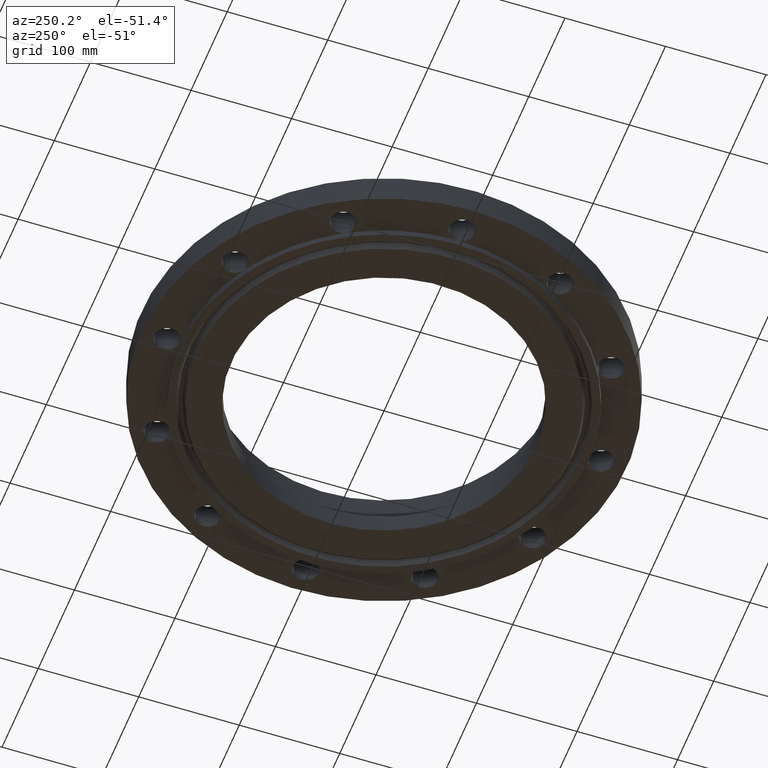
[diagram: clean part render]
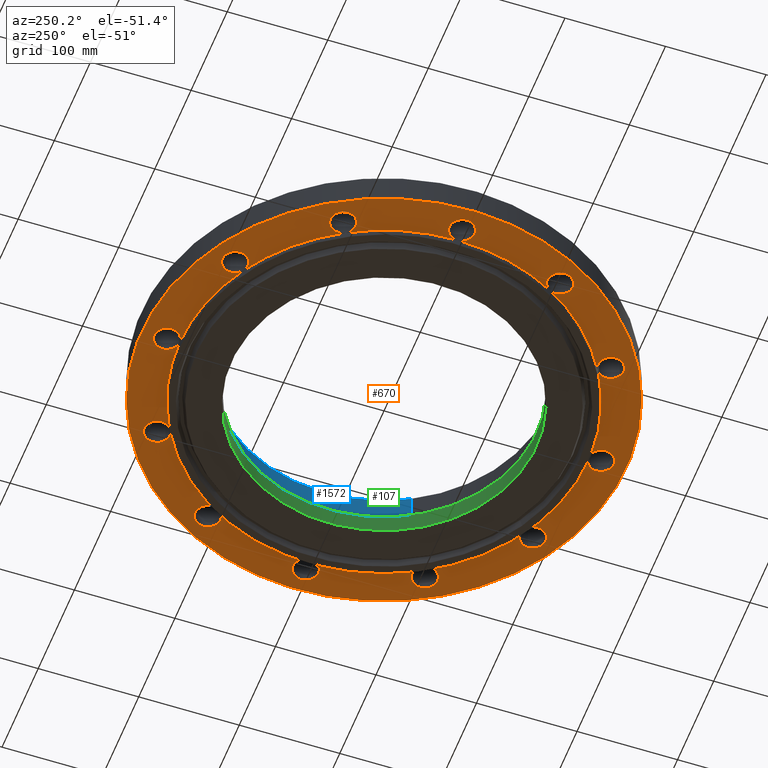
[diagram: same view with three faces highlighted in distinct colors, each labeled with its STEP entity id]
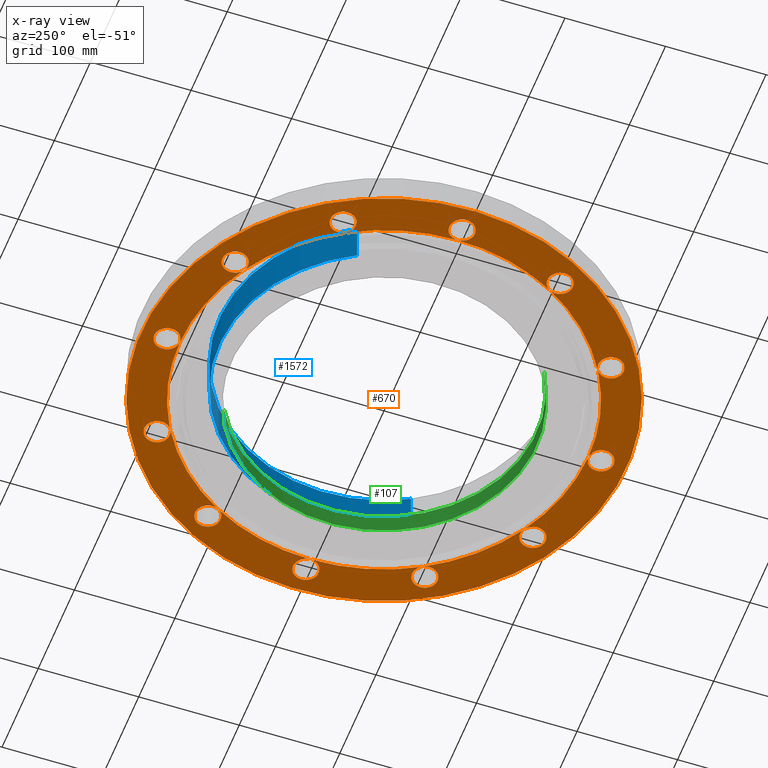
[diagram: x-ray of the same camera — body ghosted, the three highlighted faces saturated]
A machine part, auxiliary view with three faces highlighted in distinct colors.
The next image is the same camera in x-ray (body ghosted, the three faces saturated) — at least one of them is partly hidden behind the body in this view.
Their STEP definitions:

[orange] entity #670 — the highlighted planar face has unit normal (0, 0, -1).
#242=AXIS2_PLACEMENT_3D('Circle Axis2P3D',#240,#241,$) ;
#249=AXIS2_PLACEMENT_3D('Circle Axis2P3D',#247,#248,$) ;
#256=AXIS2_PLACEMENT_3D('Circle Axis2P3D',#254,#255,$) ;
#263=AXIS2_PLACEMENT_3D('Circle Axis2P3D',#261,#262,$) ;
#270=AXIS2_PLACEMENT_3D('Circle Axis2P3D',#268,#269,$) ;
#277=AXIS2_PLACEMENT_3D('Circle Axis2P3D',#275,#276,$) ;
#284=AXIS2_PLACEMENT_3D('Circle Axis2P3D',#282,#283,$) ;
#309=AXIS2_PLACEMENT_3D('Circle Axis2P3D',#307,#308,$) ;
#316=AXIS2_PLACEMENT_3D('Circle Axis2P3D',#314,#315,$) ;
#323=AXIS2_PLACEMENT_3D('Circle Axis2P3D',#321,#322,$) ;
#330=AXIS2_PLACEMENT_3D('Circle Axis2P3D',#328,#329,$) ;
#337=AXIS2_PLACEMENT_3D('Circle Axis2P3D',#335,#336,$) ;
#344=AXIS2_PLACEMENT_3D('Circle Axis2P3D',#342,#343,$) ;
#351=AXIS2_PLACEMENT_3D('Circle Axis2P3D',#349,#350,$) ;
#370=AXIS2_PLACEMENT_3D('Plane Axis2P3D',#367,#368,#369) ;
#374=AXIS2_PLACEMENT_3D('Circle Axis2P3D',#372,#373,$) ;
#383=AXIS2_PLACEMENT_3D('Circle Axis2P3D',#381,#382,$) ;
#392=AXIS2_PLACEMENT_3D('Circle Axis2P3D',#390,#391,$) ;
#399=AXIS2_PLACEMENT_3D('Circle Axis2P3D',#397,#398,$) ;
#406=AXIS2_PLACEMENT_3D('Circle Axis2P3D',#404,#405,$) ;
#411=AXIS2_PLACEMENT_3D('Circle Axis2P3D',#409,#410,$) ;
#418=AXIS2_PLACEMENT_3D('Circle Axis2P3D',#416,#417,$) ;
#425=AXIS2_PLACEMENT_3D('Circle Axis2P3D',#423,#424,$) ;
#430=AXIS2_PLACEMENT_3D('Circle Axis2P3D',#428,#429,$) ;
#437=AXIS2_PLACEMENT_3D('Circle Axis2P3D',#435,#436,$) ;
#444=AXIS2_PLACEMENT_3D('Circle Axis2P3D',#442,#443,$) ;
#449=AXIS2_PLACEMENT_3D('Circle Axis2P3D',#447,#448,$) ;
#456=AXIS2_PLACEMENT_3D('Circle Axis2P3D',#454,#455,$) ;
#463=AXIS2_PLACEMENT_3D('Circle Axis2P3D',#461,#462,$) ;
#468=AXIS2_PLACEMENT_3D('Circle Axis2P3D',#466,#467,$) ;
#475=AXIS2_PLACEMENT_3D('Circle Axis2P3D',#473,#474,$) ;
#482=AXIS2_PLACEMENT_3D('Circle Axis2P3D',#480,#481,$) ;
#487=AXIS2_PLACEMENT_3D('Circle Axis2P3D',#485,#486,$) ;
#494=AXIS2_PLACEMENT_3D('Circle Axis2P3D',#492,#493,$) ;
#501=AXIS2_PLACEMENT_3D('Circle Axis2P3D',#499,#500,$) ;
#506=AXIS2_PLACEMENT_3D('Circle Axis2P3D',#504,#505,$) ;
#513=AXIS2_PLACEMENT_3D('Circle Axis2P3D',#511,#512,$) ;
#520=AXIS2_PLACEMENT_3D('Circle Axis2P3D',#518,#519,$) ;
#525=AXIS2_PLACEMENT_3D('Circle Axis2P3D',#523,#524,$) ;
#532=AXIS2_PLACEMENT_3D('Circle Axis2P3D',#530,#531,$) ;
#539=AXIS2_PLACEMENT_3D('Circle Axis2P3D',#537,#538,$) ;
#544=AXIS2_PLACEMENT_3D('Circle Axis2P3D',#542,#543,$) ;
#551=AXIS2_PLACEMENT_3D('Circle Axis2P3D',#549,#550,$) ;
#558=AXIS2_PLACEMENT_3D('Circle Axis2P3D',#556,#557,$) ;
#563=AXIS2_PLACEMENT_3D('Circle Axis2P3D',#561,#562,$) ;
#570=AXIS2_PLACEMENT_3D('Circle Axis2P3D',#568,#569,$) ;
#577=AXIS2_PLACEMENT_3D('Circle Axis2P3D',#575,#576,$) ;
#582=AXIS2_PLACEMENT_3D('Circle Axis2P3D',#580,#581,$) ;
#589=AXIS2_PLACEMENT_3D('Circle Axis2P3D',#587,#588,$) ;
#596=AXIS2_PLACEMENT_3D('Circle Axis2P3D',#594,#595,$) ;
#601=AXIS2_PLACEMENT_3D('Circle Axis2P3D',#599,#600,$) ;
#608=AXIS2_PLACEMENT_3D('Circle Axis2P3D',#606,#607,$) ;
#615=AXIS2_PLACEMENT_3D('Circle Axis2P3D',#613,#614,$) ;
#237=CARTESIAN_POINT('Vertex',(-3.83540430885,-7.02066049515,8.39223703654E-016)) ;
#240=CARTESIAN_POINT('Axis2P3D Location',(0.,0.,9.79094320929E-016)) ;
#244=CARTESIAN_POINT('Vertex',(-4.00000000002,-6.9282032303,0.)) ;
#247=CARTESIAN_POINT('Axis2P3D Location',(0.,0.,9.79094320929E-016)) ;
#251=CARTESIAN_POINT('Vertex',(-6.9282032303,-4.00000000002,0.)) ;
#254=CARTESIAN_POINT('Axis2P3D Location',(0.,0.,9.79094320929E-016)) ;
#258=CARTESIAN_POINT('Vertex',(-8.00000000003,1.1189649382E-015,0.)) ;
#261=CARTESIAN_POINT('Axis2P3D Location',(0.,0.,9.79094320929E-016)) ;
#265=CARTESIAN_POINT('Vertex',(-6.9282032303,4.00000000002,0.)) ;
#268=CARTESIAN_POINT('Axis2P3D Location',(0.,0.,9.79094320929E-016)) ;
#272=CARTESIAN_POINT('Vertex',(-4.00000000002,6.9282032303,0.)) ;
#275=CARTESIAN_POINT('Axis2P3D Location',(0.,0.,9.79094320929E-016)) ;
#279=CARTESIAN_POINT('Vertex',(-3.42901103763E-015,8.00000000003,9.79094320929E-016)) ;
#282=CARTESIAN_POINT('Axis2P3D Location',(0.,0.,9.79094320929E-016)) ;
#286=CARTESIAN_POINT('Vertex',(3.83540430885,7.02066049515,8.39223703654E-016)) ;
#307=CARTESIAN_POINT('Axis2P3D Location',(0.,0.,9.79094320929E-016)) ;
#311=CARTESIAN_POINT('Vertex',(4.00000000002,6.9282032303,0.)) ;
#314=CARTESIAN_POINT('Axis2P3D Location',(0.,0.,9.79094320929E-016)) ;
#318=CARTESIAN_POINT('Vertex',(6.9282032303,4.00000000002,0.)) ;
#321=CARTESIAN_POINT('Axis2P3D Location',(0.,0.,9.79094320929E-016)) ;
#325=CARTESIAN_POINT('Vertex',(8.00000000003,0.,0.)) ;
#328=CARTESIAN_POINT('Axis2P3D Location',(0.,0.,9.79094320929E-016)) ;
#332=CARTESIAN_POINT('Vertex',(6.9282032303,-4.00000000002,0.)) ;
#335=CARTESIAN_POINT('Axis2P3D Location',(0.,0.,9.79094320929E-016)) ;
#339=CARTESIAN_POINT('Vertex',(4.00000000002,-6.9282032303,0.)) ;
#342=CARTESIAN_POINT('Axis2P3D Location',(0.,0.,9.79094320929E-016)) ;
#346=CARTESIAN_POINT('Vertex',(1.4467282801E-015,-8.00000000003,0.)) ;
#349=CARTESIAN_POINT('Axis2P3D Location',(0.,0.,9.79094320929E-016)) ;
#367=CARTESIAN_POINT('Axis2P3D Location',(0.,8.00000000003,0.)) ;
#372=CARTESIAN_POINT('Axis2P3D Location',(0.,0.,0.)) ;
#376=CARTESIAN_POINT('Vertex',(-4.55454261676,-8.33703433799,1.1189649382E-015)) ;
#378=CARTESIAN_POINT('Vertex',(4.55454261676,8.33703433799,1.1189649382E-015)) ;
#381=CARTESIAN_POINT('Axis2P3D Location',(0.,0.,0.)) ;
#390=CARTESIAN_POINT('Axis2P3D Location',(7.3612159322,4.25000000002,0.)) ;
#394=CARTESIAN_POINT('Vertex',(7.37301422484,3.75013921911,0.)) ;
#397=CARTESIAN_POINT('Axis2P3D Location',(7.3612159322,4.25000000002,0.)) ;
#401=CARTESIAN_POINT('Vertex',(7.34941763955,4.74986078093,0.)) ;
#404=CARTESIAN_POINT('Axis2P3D Location',(7.3612159322,4.25000000002,0.)) ;
#409=CARTESIAN_POINT('Axis2P3D Location',(4.25000000002,7.3612159322,0.)) ;
#413=CARTESIAN_POINT('Vertex',(4.51014801162,6.9342229439,0.)) ;
#416=CARTESIAN_POINT('Axis2P3D Location',(4.25000000002,7.3612159322,0.)) ;
#420=CARTESIAN_POINT('Vertex',(3.98985198841,7.7882089205,0.)) ;
#423=CARTESIAN_POINT('Axis2P3D Location',(4.25000000002,7.3612159322,0.)) ;
#428=CARTESIAN_POINT('Axis2P3D Location',(5.24514814784E-017,8.50000000003,0.)) ;
#432=CARTESIAN_POINT('Vertex',(0.438791280947,8.26028723073,0.)) ;
#435=CARTESIAN_POINT('Axis2P3D Location',(-2.62257407392E-016,8.50000000003,0.)) ;
#439=CARTESIAN_POINT('Vertex',(-0.438791280947,8.73971276934,0.)) ;
#442=CARTESIAN_POINT('Axis2P3D Location',(5.24514814784E-017,8.50000000003,0.)) ;
#447=CARTESIAN_POINT('Axis2P3D Location',(-4.25000000002,7.3612159322,0.)) ;
#451=CARTESIAN_POINT('Vertex',(-3.75013921911,7.37301422484,0.)) ;
#454=CARTESIAN_POINT('Axis2P3D Location',(-4.25000000002,7.3612159322,0.)) ;
#458=CARTESIAN_POINT('Vertex',(-4.74986078093,7.34941763955,0.)) ;
#461=CARTESIAN_POINT('Axis2P3D Location',(-4.25000000002,7.3612159322,0.)) ;
#466=CARTESIAN_POINT('Axis2P3D Location',(-7.3612159322,4.25000000002,0.)) ;
#470=CARTESIAN_POINT('Vertex',(-6.9342229439,4.51014801162,0.)) ;
#473=CARTESIAN_POINT('Axis2P3D Location',(-7.3612159322,4.25000000002,0.)) ;
#477=CARTESIAN_POINT('Vertex',(-7.7882089205,3.98985198841,0.)) ;
#480=CARTESIAN_POINT('Axis2P3D Location',(-7.3612159322,4.25000000002,0.)) ;
#485=CARTESIAN_POINT('Axis2P3D Location',(-8.50000000003,0.,0.)) ;
#489=CARTESIAN_POINT('Vertex',(-8.26028723073,0.438791280947,0.)) ;
#492=CARTESIAN_POINT('Axis2P3D Location',(-8.50000000003,-1.1189649382E-015,0.)) ;
#496=CARTESIAN_POINT('Vertex',(-8.73971276934,-0.438791280947,0.)) ;
#499=CARTESIAN_POINT('Axis2P3D Location',(-8.50000000003,0.,0.)) ;
#504=CARTESIAN_POINT('Axis2P3D Location',(-7.3612159322,-4.25000000002,0.)) ;
#508=CARTESIAN_POINT('Vertex',(-7.37301422484,-3.75013921911,0.)) ;
#511=CARTESIAN_POINT('Axis2P3D Location',(-7.3612159322,-4.25000000002,0.)) ;
#515=CARTESIAN_POINT('Vertex',(-7.34941763955,-4.74986078093,0.)) ;
#518=CARTESIAN_POINT('Axis2P3D Location',(-7.3612159322,-4.25000000002,0.)) ;
#523=CARTESIAN_POINT('Axis2P3D Location',(-4.25000000002,-7.3612159322,0.)) ;
#527=CARTESIAN_POINT('Vertex',(-4.51014801162,-6.9342229439,0.)) ;
#530=CARTESIAN_POINT('Axis2P3D Location',(-4.25000000002,-7.3612159322,0.)) ;
#534=CARTESIAN_POINT('Vertex',(-3.98985198841,-7.7882089205,0.)) ;
#537=CARTESIAN_POINT('Axis2P3D Location',(-4.25000000002,-7.3612159322,0.)) ;
#542=CARTESIAN_POINT('Axis2P3D Location',(1.53857679003E-015,-8.50000000003,0.)) ;
#546=CARTESIAN_POINT('Vertex',(-0.438791280947,-8.26028723073,0.)) ;
#549=CARTESIAN_POINT('Axis2P3D Location',(6.81869259219E-016,-8.50000000003,0.)) ;
#553=CARTESIAN_POINT('Vertex',(0.438791280947,-8.73971276934,0.)) ;
#556=CARTESIAN_POINT('Axis2P3D Location',(1.53857679003E-015,-8.50000000003,0.)) ;
#561=CARTESIAN_POINT('Axis2P3D Location',(4.25000000002,-7.3612159322,0.)) ;
#565=CARTESIAN_POINT('Vertex',(3.75013921911,-7.37301422484,0.)) ;
#568=CARTESIAN_POINT('Axis2P3D Location',(4.25000000002,-7.3612159322,0.)) ;
#572=CARTESIAN_POINT('Vertex',(4.74986078093,-7.34941763955,0.)) ;
#575=CARTESIAN_POINT('Axis2P3D Location',(4.25000000002,-7.3612159322,0.)) ;
#580=CARTESIAN_POINT('Axis2P3D Location',(7.3612159322,-4.25000000002,0.)) ;
#584=CARTESIAN_POINT('Vertex',(6.9342229439,-4.51014801162,-1.1189649382E-015)) ;
#587=CARTESIAN_POINT('Axis2P3D Location',(7.3612159322,-4.25000000002,0.)) ;
#591=CARTESIAN_POINT('Vertex',(7.7882089205,-3.98985198841,0.)) ;
#594=CARTESIAN_POINT('Axis2P3D Location',(7.3612159322,-4.25000000002,0.)) ;
#599=CARTESIAN_POINT('Axis2P3D Location',(8.50000000003,0.,0.)) ;
#603=CARTESIAN_POINT('Vertex',(8.26028723073,-0.438791280947,0.)) ;
#606=CARTESIAN_POINT('Axis2P3D Location',(8.50000000003,0.,0.)) ;
#610=CARTESIAN_POINT('Vertex',(8.73971276934,0.438791280947,0.)) ;
#613=CARTESIAN_POINT('Axis2P3D Location',(8.50000000003,0.,0.)) ;
#241=DIRECTION('Axis2P3D Direction',(0.,0.,-0.0393700787402)) ;
#248=DIRECTION('Axis2P3D Direction',(0.,0.,-0.0393700787402)) ;
#255=DIRECTION('Axis2P3D Direction',(0.,0.,-0.0393700787402)) ;
#262=DIRECTION('Axis2P3D Direction',(0.,0.,-0.0393700787402)) ;
#269=DIRECTION('Axis2P3D Direction',(0.,0.,-0.0393700787402)) ;
#276=DIRECTION('Axis2P3D Direction',(0.,0.,-0.0393700787402)) ;
#283=DIRECTION('Axis2P3D Direction',(0.,0.,-0.0393700787402)) ;
#308=DIRECTION('Axis2P3D Direction',(0.,0.,-0.0393700787402)) ;
#315=DIRECTION('Axis2P3D Direction',(0.,0.,-0.0393700787402)) ;
#322=DIRECTION('Axis2P3D Direction',(0.,0.,-0.0393700787402)) ;
#329=DIRECTION('Axis2P3D Direction',(0.,0.,-0.0393700787402)) ;
#336=DIRECTION('Axis2P3D Direction',(0.,0.,-0.0393700787402)) ;
#343=DIRECTION('Axis2P3D Direction',(0.,0.,-0.0393700787402)) ;
#350=DIRECTION('Axis2P3D Direction',(0.,0.,-0.0393700787402)) ;
#368=DIRECTION('Axis2P3D Direction',(0.,0.,-0.0393700787402)) ;
#369=DIRECTION('Axis2P3D XDirection',(0.0393700787402,0.,0.)) ;
#373=DIRECTION('Axis2P3D Direction',(0.,0.,-0.0393700787402)) ;
#382=DIRECTION('Axis2P3D Direction',(0.,0.,-0.0393700787402)) ;
#391=DIRECTION('Axis2P3D Direction',(0.,0.,-0.0393700787402)) ;
#398=DIRECTION('Axis2P3D Direction',(0.,0.,-0.0393700787402)) ;
#405=DIRECTION('Axis2P3D Direction',(0.,0.,-0.0393700787402)) ;
#410=DIRECTION('Axis2P3D Direction',(0.,0.,-0.0393700787402)) ;
#417=DIRECTION('Axis2P3D Direction',(0.,0.,-0.0393700787402)) ;
#424=DIRECTION('Axis2P3D Direction',(0.,0.,-0.0393700787402)) ;
#429=DIRECTION('Axis2P3D Direction',(0.,0.,-0.0393700787402)) ;
#436=DIRECTION('Axis2P3D Direction',(0.,0.,-0.0393700787402)) ;
#443=DIRECTION('Axis2P3D Direction',(0.,0.,-0.0393700787402)) ;
#448=DIRECTION('Axis2P3D Direction',(0.,0.,-0.0393700787402)) ;
#455=DIRECTION('Axis2P3D Direction',(0.,0.,-0.0393700787402)) ;
#462=DIRECTION('Axis2P3D Direction',(0.,0.,-0.0393700787402)) ;
#467=DIRECTION('Axis2P3D Direction',(0.,0.,-0.0393700787402)) ;
#474=DIRECTION('Axis2P3D Direction',(0.,0.,-0.0393700787402)) ;
#481=DIRECTION('Axis2P3D Direction',(0.,0.,-0.0393700787402)) ;
#486=DIRECTION('Axis2P3D Direction',(0.,0.,-0.0393700787402)) ;
#493=DIRECTION('Axis2P3D Direction',(0.,0.,-0.0393700787402)) ;
#500=DIRECTION('Axis2P3D Direction',(0.,0.,-0.0393700787402)) ;
#505=DIRECTION('Axis2P3D Direction',(0.,0.,-0.0393700787402)) ;
#512=DIRECTION('Axis2P3D Direction',(0.,0.,-0.0393700787402)) ;
#519=DIRECTION('Axis2P3D Direction',(0.,0.,-0.0393700787402)) ;
#524=DIRECTION('Axis2P3D Direction',(0.,0.,-0.0393700787402)) ;
#531=DIRECTION('Axis2P3D Direction',(0.,0.,-0.0393700787402)) ;
#538=DIRECTION('Axis2P3D Direction',(0.,0.,-0.0393700787402)) ;
#543=DIRECTION('Axis2P3D Direction',(0.,0.,-0.0393700787402)) ;
#550=DIRECTION('Axis2P3D Direction',(0.,0.,-0.0393700787402)) ;
#557=DIRECTION('Axis2P3D Direction',(0.,0.,-0.0393700787402)) ;
#562=DIRECTION('Axis2P3D Direction',(0.,0.,-0.0393700787402)) ;
#569=DIRECTION('Axis2P3D Direction',(0.,0.,-0.0393700787402)) ;
#576=DIRECTION('Axis2P3D Direction',(0.,0.,-0.0393700787402)) ;
#581=DIRECTION('Axis2P3D Direction',(0.,0.,-0.0393700787402)) ;
#588=DIRECTION('Axis2P3D Direction',(0.,0.,-0.0393700787402)) ;
#595=DIRECTION('Axis2P3D Direction',(0.,0.,-0.0393700787402)) ;
#600=DIRECTION('Axis2P3D Direction',(0.,0.,-0.0393700787402)) ;
#607=DIRECTION('Axis2P3D Direction',(0.,0.,-0.0393700787402)) ;
#614=DIRECTION('Axis2P3D Direction',(0.,0.,-0.0393700787402)) ;
#387=ORIENTED_EDGE('',*,*,#380,.T.) ;
#388=ORIENTED_EDGE('',*,*,#385,.T.) ;
#619=ORIENTED_EDGE('',*,*,#396,.F.) ;
#620=ORIENTED_EDGE('',*,*,#403,.F.) ;
#621=ORIENTED_EDGE('',*,*,#408,.F.) ;
#622=ORIENTED_EDGE('',*,*,#320,.F.) ;
#623=ORIENTED_EDGE('',*,*,#415,.F.) ;
#624=ORIENTED_EDGE('',*,*,#422,.F.) ;
#625=ORIENTED_EDGE('',*,*,#427,.F.) ;
#626=ORIENTED_EDGE('',*,*,#313,.F.) ;
#627=ORIENTED_EDGE('',*,*,#288,.F.) ;
#628=ORIENTED_EDGE('',*,*,#434,.F.) ;
#629=ORIENTED_EDGE('',*,*,#441,.F.) ;
#630=ORIENTED_EDGE('',*,*,#446,.F.) ;
#631=ORIENTED_EDGE('',*,*,#281,.F.) ;
#632=ORIENTED_EDGE('',*,*,#453,.F.) ;
#633=ORIENTED_EDGE('',*,*,#460,.F.) ;
#634=ORIENTED_EDGE('',*,*,#465,.F.) ;
#635=ORIENTED_EDGE('',*,*,#274,.F.) ;
#636=ORIENTED_EDGE('',*,*,#472,.F.) ;
#637=ORIENTED_EDGE('',*,*,#479,.F.) ;
#638=ORIENTED_EDGE('',*,*,#484,.F.) ;
#639=ORIENTED_EDGE('',*,*,#267,.F.) ;
#640=ORIENTED_EDGE('',*,*,#491,.F.) ;
#641=ORIENTED_EDGE('',*,*,#498,.F.) ;
#642=ORIENTED_EDGE('',*,*,#503,.F.) ;
#643=ORIENTED_EDGE('',*,*,#260,.F.) ;
#644=ORIENTED_EDGE('',*,*,#510,.F.) ;
#645=ORIENTED_EDGE('',*,*,#517,.F.) ;
#646=ORIENTED_EDGE('',*,*,#522,.F.) ;
#647=ORIENTED_EDGE('',*,*,#253,.F.) ;
#648=ORIENTED_EDGE('',*,*,#529,.F.) ;
#649=ORIENTED_EDGE('',*,*,#536,.F.) ;
#650=ORIENTED_EDGE('',*,*,#541,.F.) ;
#651=ORIENTED_EDGE('',*,*,#246,.F.) ;
#652=ORIENTED_EDGE('',*,*,#353,.F.) ;
#653=ORIENTED_EDGE('',*,*,#548,.F.) ;
#654=ORIENTED_EDGE('',*,*,#555,.F.) ;
#655=ORIENTED_EDGE('',*,*,#560,.F.) ;
#656=ORIENTED_EDGE('',*,*,#348,.F.) ;
#657=ORIENTED_EDGE('',*,*,#567,.F.) ;
#658=ORIENTED_EDGE('',*,*,#574,.F.) ;
#659=ORIENTED_EDGE('',*,*,#579,.F.) ;
#660=ORIENTED_EDGE('',*,*,#341,.F.) ;
#661=ORIENTED_EDGE('',*,*,#586,.F.) ;
#662=ORIENTED_EDGE('',*,*,#593,.F.) ;
#663=ORIENTED_EDGE('',*,*,#598,.F.) ;
#664=ORIENTED_EDGE('',*,*,#334,.F.) ;
#665=ORIENTED_EDGE('',*,*,#605,.F.) ;
#666=ORIENTED_EDGE('',*,*,#612,.F.) ;
#667=ORIENTED_EDGE('',*,*,#617,.F.) ;
#668=ORIENTED_EDGE('',*,*,#327,.F.) ;
#669=FACE_BOUND('',#618,.T.) ;
#670=ADVANCED_FACE('PartBody',(#389,#669),#371,.T.) ;
#243=CIRCLE('generated circle',#242,8.00000000003) ;
#250=CIRCLE('generated circle',#249,8.00000000003) ;
#257=CIRCLE('generated circle',#256,8.00000000003) ;
#264=CIRCLE('generated circle',#263,8.00000000003) ;
#271=CIRCLE('generated circle',#270,8.00000000003) ;
#278=CIRCLE('generated circle',#277,8.00000000003) ;
#285=CIRCLE('generated circle',#284,8.00000000003) ;
#310=CIRCLE('generated circle',#309,8.00000000003) ;
#317=CIRCLE('generated circle',#316,8.00000000003) ;
#324=CIRCLE('generated circle',#323,8.00000000003) ;
#331=CIRCLE('generated circle',#330,8.00000000003) ;
#338=CIRCLE('generated circle',#337,8.00000000003) ;
#345=CIRCLE('generated circle',#344,8.00000000003) ;
#352=CIRCLE('generated circle',#351,8.00000000003) ;
#375=CIRCLE('generated circle',#374,9.50000000004) ;
#384=CIRCLE('generated circle',#383,9.50000000004) ;
#393=CIRCLE('generated circle',#392,0.500000000002) ;
#400=CIRCLE('generated circle',#399,0.500000000002) ;
#407=CIRCLE('generated circle',#406,0.500000000002) ;
#412=CIRCLE('generated circle',#411,0.500000000002) ;
#419=CIRCLE('generated circle',#418,0.500000000002) ;
#426=CIRCLE('generated circle',#425,0.500000000002) ;
#431=CIRCLE('generated circle',#430,0.500000000002) ;
#438=CIRCLE('generated circle',#437,0.500000000002) ;
#445=CIRCLE('generated circle',#444,0.500000000002) ;
#450=CIRCLE('generated circle',#449,0.500000000002) ;
#457=CIRCLE('generated circle',#456,0.500000000002) ;
#464=CIRCLE('generated circle',#463,0.500000000002) ;
#469=CIRCLE('generated circle',#468,0.500000000002) ;
#476=CIRCLE('generated circle',#475,0.500000000002) ;
#483=CIRCLE('generated circle',#482,0.500000000002) ;
#488=CIRCLE('generated circle',#487,0.500000000002) ;
#495=CIRCLE('generated circle',#494,0.500000000002) ;
#502=CIRCLE('generated circle',#501,0.500000000002) ;
#507=CIRCLE('generated circle',#506,0.500000000002) ;
#514=CIRCLE('generated circle',#513,0.500000000002) ;
#521=CIRCLE('generated circle',#520,0.500000000002) ;
#526=CIRCLE('generated circle',#525,0.500000000002) ;
#533=CIRCLE('generated circle',#532,0.500000000002) ;
#540=CIRCLE('generated circle',#539,0.500000000002) ;
#545=CIRCLE('generated circle',#544,0.500000000002) ;
#552=CIRCLE('generated circle',#551,0.500000000002) ;
#559=CIRCLE('generated circle',#558,0.500000000002) ;
#564=CIRCLE('generated circle',#563,0.500000000002) ;
#571=CIRCLE('generated circle',#570,0.500000000002) ;
#578=CIRCLE('generated circle',#577,0.500000000002) ;
#583=CIRCLE('generated circle',#582,0.500000000002) ;
#590=CIRCLE('generated circle',#589,0.500000000002) ;
#597=CIRCLE('generated circle',#596,0.500000000002) ;
#602=CIRCLE('generated circle',#601,0.500000000002) ;
#609=CIRCLE('generated circle',#608,0.500000000002) ;
#616=CIRCLE('generated circle',#615,0.500000000002) ;
#246=EDGE_CURVE('',#238,#245,#243,.T.) ;
#253=EDGE_CURVE('',#245,#252,#250,.T.) ;
#260=EDGE_CURVE('',#252,#259,#257,.T.) ;
#267=EDGE_CURVE('',#259,#266,#264,.T.) ;
#274=EDGE_CURVE('',#266,#273,#271,.T.) ;
#281=EDGE_CURVE('',#273,#280,#278,.T.) ;
#288=EDGE_CURVE('',#280,#287,#285,.T.) ;
#313=EDGE_CURVE('',#287,#312,#310,.T.) ;
#320=EDGE_CURVE('',#312,#319,#317,.T.) ;
#327=EDGE_CURVE('',#319,#326,#324,.T.) ;
#334=EDGE_CURVE('',#326,#333,#331,.T.) ;
#341=EDGE_CURVE('',#333,#340,#338,.T.) ;
#348=EDGE_CURVE('',#340,#347,#345,.T.) ;
#353=EDGE_CURVE('',#347,#238,#352,.T.) ;
#380=EDGE_CURVE('',#377,#379,#375,.T.) ;
#385=EDGE_CURVE('',#379,#377,#384,.T.) ;
#396=EDGE_CURVE('',#395,#319,#393,.T.) ;
#403=EDGE_CURVE('',#402,#395,#400,.T.) ;
#408=EDGE_CURVE('',#319,#402,#407,.T.) ;
#415=EDGE_CURVE('',#414,#312,#412,.T.) ;
#422=EDGE_CURVE('',#421,#414,#419,.T.) ;
#427=EDGE_CURVE('',#312,#421,#426,.T.) ;
#434=EDGE_CURVE('',#433,#280,#431,.T.) ;
#441=EDGE_CURVE('',#440,#433,#438,.T.) ;
#446=EDGE_CURVE('',#280,#440,#445,.T.) ;
#453=EDGE_CURVE('',#452,#273,#450,.T.) ;
#460=EDGE_CURVE('',#459,#452,#457,.T.) ;
#465=EDGE_CURVE('',#273,#459,#464,.T.) ;
#472=EDGE_CURVE('',#471,#266,#469,.T.) ;
#479=EDGE_CURVE('',#478,#471,#476,.T.) ;
#484=EDGE_CURVE('',#266,#478,#483,.T.) ;
#491=EDGE_CURVE('',#490,#259,#488,.T.) ;
#498=EDGE_CURVE('',#497,#490,#495,.T.) ;
#503=EDGE_CURVE('',#259,#497,#502,.T.) ;
#510=EDGE_CURVE('',#509,#252,#507,.T.) ;
#517=EDGE_CURVE('',#516,#509,#514,.T.) ;
#522=EDGE_CURVE('',#252,#516,#521,.T.) ;
#529=EDGE_CURVE('',#528,#245,#526,.T.) ;
#536=EDGE_CURVE('',#535,#528,#533,.T.) ;
#541=EDGE_CURVE('',#245,#535,#540,.T.) ;
#548=EDGE_CURVE('',#547,#347,#545,.T.) ;
#555=EDGE_CURVE('',#554,#547,#552,.T.) ;
#560=EDGE_CURVE('',#347,#554,#559,.T.) ;
#567=EDGE_CURVE('',#566,#340,#564,.T.) ;
#574=EDGE_CURVE('',#573,#566,#571,.T.) ;
#579=EDGE_CURVE('',#340,#573,#578,.T.) ;
#586=EDGE_CURVE('',#585,#333,#583,.T.) ;
#593=EDGE_CURVE('',#592,#585,#590,.T.) ;
#598=EDGE_CURVE('',#333,#592,#597,.T.) ;
#605=EDGE_CURVE('',#604,#326,#602,.T.) ;
#612=EDGE_CURVE('',#611,#604,#609,.T.) ;
#617=EDGE_CURVE('',#326,#611,#616,.T.) ;
#386=EDGE_LOOP('',(#387,#388)) ;
#618=EDGE_LOOP('',(#619,#620,#621,#622,#623,#624,#625,#626,#627,#628,#629,#630,#631,#632,#633,#634,#635,#636,#637,#638,#639,#640,#641,#642,#643,#644,#645,#646,#647,#648,#649,#650,#651,#652,#653,#654,#655,#656,#657,#658,#659,#660,#661,#662,#663,#664,#665,#666,#667,#668)) ;
#389=FACE_OUTER_BOUND('',#386,.T.) ;
#371=PLANE('',#370) ;
#238=VERTEX_POINT('',#237) ;
#245=VERTEX_POINT('',#244) ;
#252=VERTEX_POINT('',#251) ;
#259=VERTEX_POINT('',#258) ;
#266=VERTEX_POINT('',#265) ;
#273=VERTEX_POINT('',#272) ;
#280=VERTEX_POINT('',#279) ;
#287=VERTEX_POINT('',#286) ;
#312=VERTEX_POINT('',#311) ;
#319=VERTEX_POINT('',#318) ;
#326=VERTEX_POINT('',#325) ;
#333=VERTEX_POINT('',#332) ;
#340=VERTEX_POINT('',#339) ;
#347=VERTEX_POINT('',#346) ;
#377=VERTEX_POINT('',#376) ;
#379=VERTEX_POINT('',#378) ;
#395=VERTEX_POINT('',#394) ;
#402=VERTEX_POINT('',#401) ;
#414=VERTEX_POINT('',#413) ;
#421=VERTEX_POINT('',#420) ;
#433=VERTEX_POINT('',#432) ;
#440=VERTEX_POINT('',#439) ;
#452=VERTEX_POINT('',#451) ;
#459=VERTEX_POINT('',#458) ;
#471=VERTEX_POINT('',#470) ;
#478=VERTEX_POINT('',#477) ;
#490=VERTEX_POINT('',#489) ;
#497=VERTEX_POINT('',#496) ;
#509=VERTEX_POINT('',#508) ;
#516=VERTEX_POINT('',#515) ;
#528=VERTEX_POINT('',#527) ;
#535=VERTEX_POINT('',#534) ;
#547=VERTEX_POINT('',#546) ;
#554=VERTEX_POINT('',#553) ;
#566=VERTEX_POINT('',#565) ;
#573=VERTEX_POINT('',#572) ;
#585=VERTEX_POINT('',#584) ;
#592=VERTEX_POINT('',#591) ;
#604=VERTEX_POINT('',#603) ;
#611=VERTEX_POINT('',#610) ;

[blue] entity #1572 — the highlighted cylindrical surface (partial cylindrical patch) has radius 163.576 mm, axis along (0, 0, -1).
#42=AXIS2_PLACEMENT_3D('Circle Axis2P3D',#40,#41,$) ;
#1505=AXIS2_PLACEMENT_3D('Circle Axis2P3D',#1503,#1504,$) ;
#1554=AXIS2_PLACEMENT_3D('Cylinder Axis2P3D',#1551,#1552,#1553) ;
#40=CARTESIAN_POINT('Axis2P3D Location',(1.04902962957E-016,-6.99353086378E-017,0.560000000002)) ;
#44=CARTESIAN_POINT('Vertex',(-5.6516316986,3.08750046862,0.560000000002)) ;
#46=CARTESIAN_POINT('Vertex',(5.6516316986,-3.08750046862,0.560000000002)) ;
#1503=CARTESIAN_POINT('Axis2P3D Location',(-5.59482469102E-016,1.1189649382E-015,2.12000000001)) ;
#1507=CARTESIAN_POINT('Vertex',(-5.6516316986,3.08750046862,2.12000000001)) ;
#1509=CARTESIAN_POINT('Vertex',(5.6516316986,-3.08750046862,2.12000000001)) ;
#1551=CARTESIAN_POINT('Axis2P3D Location',(1.04902962957E-016,-6.99353086378E-017,2.11606299213)) ;
#1556=CARTESIAN_POINT('Line Origine',(-5.6516316986,3.08750046862,1.34000000001)) ;
#1561=CARTESIAN_POINT('Line Origine',(5.6516316986,-3.08750046862,1.34000000001)) ;
#41=DIRECTION('Axis2P3D Direction',(0.,0.,-0.0393700787402)) ;
#1504=DIRECTION('Axis2P3D Direction',(0.,0.,-0.0393700787402)) ;
#1552=DIRECTION('Axis2P3D Direction',(0.,0.,-0.0393700787402)) ;
#1553=DIRECTION('Axis2P3D XDirection',(0.0345504945626,-0.0188750212049,0.)) ;
#1557=DIRECTION('Vector Direction',(0.,0.,-0.0393700787402)) ;
#1562=DIRECTION('Vector Direction',(0.,0.,-0.0393700787402)) ;
#1558=VECTOR('Line Direction',#1557,0.0393700787402) ;
#1563=VECTOR('Line Direction',#1562,0.0393700787402) ;
#1567=ORIENTED_EDGE('',*,*,#1511,.F.) ;
#1568=ORIENTED_EDGE('',*,*,#1560,.F.) ;
#1569=ORIENTED_EDGE('',*,*,#48,.T.) ;
#1570=ORIENTED_EDGE('',*,*,#1565,.T.) ;
#1572=ADVANCED_FACE('PartBody',(#1571),#1555,.F.) ;
#43=CIRCLE('generated circle',#42,6.44000000003) ;
#1506=CIRCLE('generated circle',#1505,6.44000000003) ;
#1555=CYLINDRICAL_SURFACE('generated cylinder',#1554,6.44000000003) ;
#48=EDGE_CURVE('',#45,#47,#43,.T.) ;
#1511=EDGE_CURVE('',#1508,#1510,#1506,.T.) ;
#1560=EDGE_CURVE('',#45,#1508,#1559,.F.) ;
#1565=EDGE_CURVE('',#47,#1510,#1564,.F.) ;
#1566=EDGE_LOOP('',(#1567,#1568,#1569,#1570)) ;
#1571=FACE_OUTER_BOUND('',#1566,.T.) ;
#1559=LINE('Line',#1556,#1558) ;
#1564=LINE('Line',#1561,#1563) ;
#45=VERTEX_POINT('',#44) ;
#47=VERTEX_POINT('',#46) ;
#1508=VERTEX_POINT('',#1507) ;
#1510=VERTEX_POINT('',#1509) ;

[green] entity #107 — the highlighted cylindrical surface (partial cylindrical patch) has radius 151.613 mm, axis along (0, 0, -1).
#69=AXIS2_PLACEMENT_3D('Circle Axis2P3D',#67,#68,$) ;
#80=AXIS2_PLACEMENT_3D('Cylinder Axis2P3D',#77,#78,#79) ;
#91=AXIS2_PLACEMENT_3D('Circle Axis2P3D',#89,#90,$) ;
#62=CARTESIAN_POINT('Vertex',(-2.86169103994,-5.23829031194,0.560000000002)) ;
#64=CARTESIAN_POINT('Vertex',(2.86169103994,5.23829031194,0.560000000002)) ;
#67=CARTESIAN_POINT('Axis2P3D Location',(-1.01406197525E-015,-6.2941777774E-016,0.560000000002)) ;
#77=CARTESIAN_POINT('Axis2P3D Location',(0.,0.,0.935000000004)) ;
#82=CARTESIAN_POINT('Line Origine',(2.86169103994,5.23829031194,0.155000000001)) ;
#86=CARTESIAN_POINT('Vertex',(2.86169103994,5.23829031194,-0.250000000001)) ;
#89=CARTESIAN_POINT('Axis2P3D Location',(0.,0.,-0.250000000001)) ;
#93=CARTESIAN_POINT('Vertex',(-2.86169103994,-5.23829031194,-0.250000000001)) ;
#96=CARTESIAN_POINT('Line Origine',(-2.86169103994,-5.23829031194,0.155000000001)) ;
#68=DIRECTION('Axis2P3D Direction',(0.,0.,-0.0393700787402)) ;
#78=DIRECTION('Axis2P3D Direction',(0.,0.,-0.0393700787402)) ;
#79=DIRECTION('Axis2P3D XDirection',(-0.0188750212049,-0.0345504945626,0.)) ;
#83=DIRECTION('Vector Direction',(0.,0.,-0.0393700787402)) ;
#90=DIRECTION('Axis2P3D Direction',(0.,0.,-0.0393700787402)) ;
#97=DIRECTION('Vector Direction',(0.,0.,-0.0393700787402)) ;
#84=VECTOR('Line Direction',#83,0.0393700787402) ;
#98=VECTOR('Line Direction',#97,0.0393700787402) ;
#102=ORIENTED_EDGE('',*,*,#88,.T.) ;
#103=ORIENTED_EDGE('',*,*,#95,.T.) ;
#104=ORIENTED_EDGE('',*,*,#100,.F.) ;
#105=ORIENTED_EDGE('',*,*,#71,.F.) ;
#107=ADVANCED_FACE('PartBody',(#106),#81,.F.) ;
#70=CIRCLE('generated circle',#69,5.96900000002) ;
#92=CIRCLE('generated circle',#91,5.96900000002) ;
#81=CYLINDRICAL_SURFACE('generated cylinder',#80,5.96900000002) ;
#71=EDGE_CURVE('',#65,#63,#70,.T.) ;
#88=EDGE_CURVE('',#65,#87,#85,.T.) ;
#95=EDGE_CURVE('',#87,#94,#92,.T.) ;
#100=EDGE_CURVE('',#63,#94,#99,.T.) ;
#101=EDGE_LOOP('',(#102,#103,#104,#105)) ;
#106=FACE_OUTER_BOUND('',#101,.T.) ;
#85=LINE('Line',#82,#84) ;
#99=LINE('Line',#96,#98) ;
#63=VERTEX_POINT('',#62) ;
#65=VERTEX_POINT('',#64) ;
#87=VERTEX_POINT('',#86) ;
#94=VERTEX_POINT('',#93) ;